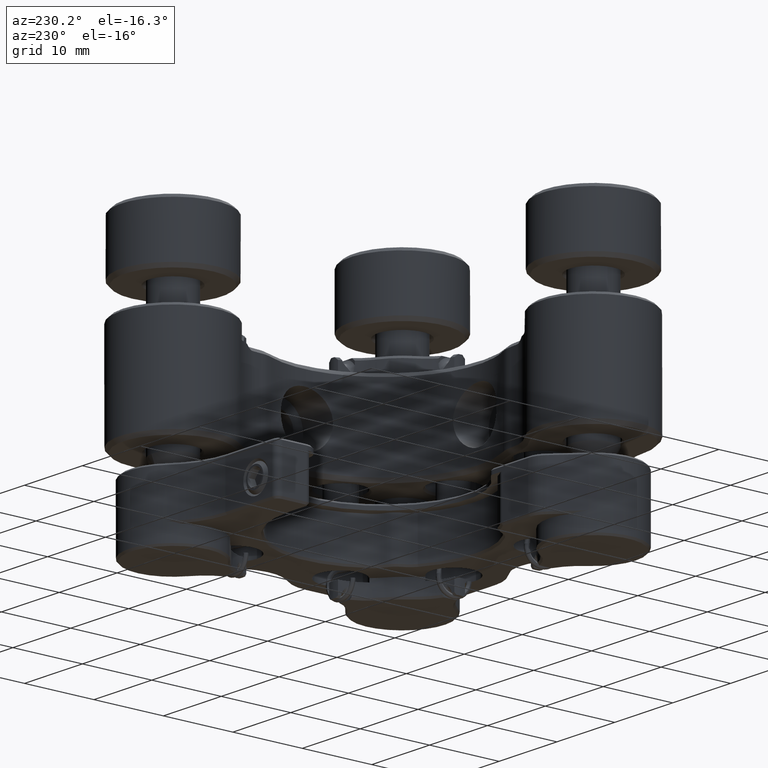
[diagram: clean part render]
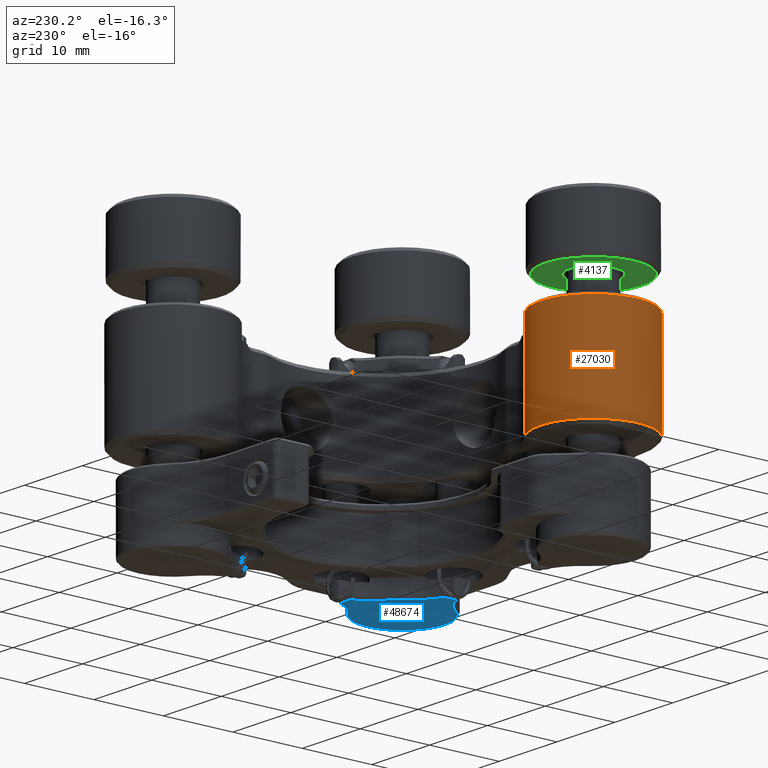
[diagram: same view with three faces highlighted in distinct colors, each labeled with its STEP entity id]
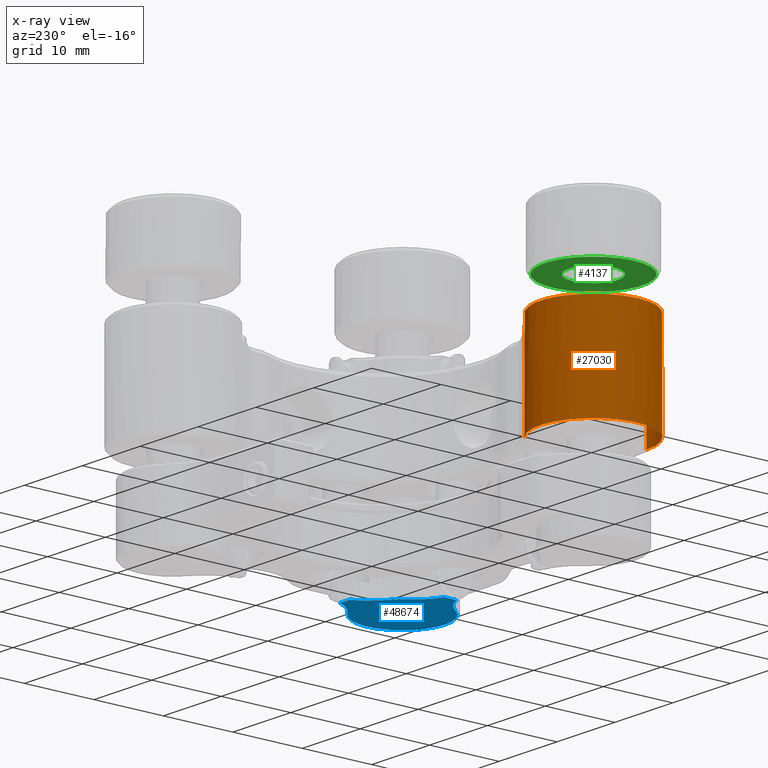
[diagram: x-ray of the same camera — body ghosted, the three highlighted faces saturated]
A machine part, auxiliary view with three faces highlighted in distinct colors.
The next image is the same camera in x-ray (body ghosted, the three faces saturated) — at least one of them is partly hidden behind the body in this view.
Their STEP definitions:

[orange] entity #27030 — the highlighted cylindrical surface (partial cylindrical patch) has radius 7.62 mm, axis along (0, 0, -1).
#89 = EDGE_CURVE ( 'NONE', #37250, #40178, #51679, .T. ) ;
#282 = CARTESIAN_POINT ( 'NONE',  ( -36.85884826638655198, 4.494097397248493664, 38.20170909685329264 ) ) ;
#806 = DIRECTION ( 'NONE',  ( 9.106159978880849785E-15, -1.000000000000000000, 0.000000000000000000 ) ) ;
#2035 = EDGE_CURVE ( 'NONE', #29170, #27580, #41493, .T. ) ;
#2494 = CARTESIAN_POINT ( 'NONE',  ( -36.85884826638653777, 12.11409739724853196, 38.20170909685329264 ) ) ;
#4441 = DIRECTION ( 'NONE',  ( -2.776129051972644027E-17, -2.760323471275298556E-17, 1.000000000000000000 ) ) ;
#5784 = ORIENTED_EDGE ( 'NONE', *, *, #14887, .T. ) ;
#6588 = EDGE_CURVE ( 'NONE', #29170, #17406, #55480, .T. ) ;
#6696 = DIRECTION ( 'NONE',  ( 9.106159978880849785E-15, -1.000000000000000000, 0.000000000000000000 ) ) ;
#7683 = DIRECTION ( 'NONE',  ( -2.776129051972644027E-17, -2.760323471275298556E-17, 1.000000000000000000 ) ) ;
#8831 = CARTESIAN_POINT ( 'NONE',  ( -36.85884826638660883, 4.494097397244424918, 26.00970909684258459 ) ) ;
#9270 = CARTESIAN_POINT ( 'NONE',  ( -36.85884826638653777, 12.11409739724853196, 40.36070909685332708 ) ) ;
#9884 = ORIENTED_EDGE ( 'NONE', *, *, #89, .T. ) ;
#10918 = EDGE_CURVE ( 'NONE', #40178, #48022, #23269, .T. ) ;
#13149 = ORIENTED_EDGE ( 'NONE', *, *, #6588, .T. ) ;
#14887 = EDGE_CURVE ( 'NONE', #48022, #36699, #24118, .T. ) ;
#15334 = DIRECTION ( 'NONE',  ( 2.776129051972644027E-17, 2.760323471275298556E-17, -1.000000000000000000 ) ) ;
#16835 = CARTESIAN_POINT ( 'NONE',  ( -36.85884826638653777, 12.11409739724853374, 26.00970909685332799 ) ) ;
#16889 = VECTOR ( 'NONE', #4441, 1000.000000000000000 ) ;
#17406 = VERTEX_POINT ( 'NONE', #282 ) ;
#17863 = CARTESIAN_POINT ( 'NONE',  ( -30.16901287497597295, 15.76245352512717446, 38.20170909685329264 ) ) ;
#18972 = DIRECTION ( 'NONE',  ( 9.106159978880849785E-15, -1.000000000000000000, 0.000000000000000000 ) ) ;
#20170 = CARTESIAN_POINT ( 'NONE',  ( -36.85884826638653777, 12.11409739724853196, 38.20170909685329264 ) ) ;
#22718 = CARTESIAN_POINT ( 'NONE',  ( -32.05622999016586050, 18.03011444361606053, 40.74170909685329178 ) ) ;
#22955 = CARTESIAN_POINT ( 'NONE',  ( -36.85884826638653777, 12.11409739724853196, 40.74170909685329178 ) ) ;
#23269 = LINE ( 'NONE', #38108, #50819 ) ;
#24118 = CIRCLE ( 'NONE', #29278, 7.620000000000023199 ) ;
#24129 = VERTEX_POINT ( 'NONE', #33797 ) ;
#27030 = ADVANCED_FACE ( 'NONE', ( #48125 ), #32628, .T. ) ;
#27374 = AXIS2_PLACEMENT_3D ( 'NONE', #22955, #42647, #57475 ) ;
#27571 = LINE ( 'NONE', #22718, #41888 ) ;
#27580 = VERTEX_POINT ( 'NONE', #31916 ) ;
#27884 = DIRECTION ( 'NONE',  ( 2.776129051972644027E-17, 2.760323471275298556E-17, -1.000000000000000000 ) ) ;
#28170 = VECTOR ( 'NONE', #7683, 1000.000000000000000 ) ;
#28952 = CARTESIAN_POINT ( 'NONE',  ( -30.16901287497609729, 8.465741269369482680, 40.36070909685332708 ) ) ;
#28981 = EDGE_CURVE ( 'NONE', #36699, #27580, #27571, .T. ) ;
#29170 = VERTEX_POINT ( 'NONE', #8831 ) ;
#29278 = AXIS2_PLACEMENT_3D ( 'NONE', #2494, #47339, #6696 ) ;
#31118 = AXIS2_PLACEMENT_3D ( 'NONE', #9270, #63486, #18972 ) ;
#31166 = AXIS2_PLACEMENT_3D ( 'NONE', #16835, #56175, #36811 ) ;
#31402 = ORIENTED_EDGE ( 'NONE', *, *, #35685, .F. ) ;
#31916 = CARTESIAN_POINT ( 'NONE',  ( -32.05622999015996299, 18.03011444364667426, 26.00970909692768984 ) ) ;
#32319 = ORIENTED_EDGE ( 'NONE', *, *, #2035, .F. ) ;
#32628 = CYLINDRICAL_SURFACE ( 'NONE', #27374, 7.620000000000023199 ) ;
#33797 = CARTESIAN_POINT ( 'NONE',  ( -30.16901287497605466, 8.465741269369553734, 38.20170909685329264 ) ) ;
#35685 = EDGE_CURVE ( 'NONE', #24129, #17406, #48111, .T. ) ;
#36409 = CARTESIAN_POINT ( 'NONE',  ( -30.16901287497598005, 15.76245352512709808, 40.36070909685336972 ) ) ;
#36699 = VERTEX_POINT ( 'NONE', #45461 ) ;
#36811 = DIRECTION ( 'NONE',  ( -7.284927983104679828E-15, 1.000000000000000000, 0.000000000000000000 ) ) ;
#37250 = VERTEX_POINT ( 'NONE', #28952 ) ;
#38108 = CARTESIAN_POINT ( 'NONE',  ( -30.16901287497586281, 15.76245352512716735, 40.74170909685329178 ) ) ;
#38328 = CARTESIAN_POINT ( 'NONE',  ( -30.16901287497609729, 8.465741269369480904, 40.74170909685329178 ) ) ;
#39615 = LINE ( 'NONE', #38328, #16889 ) ;
#40136 = ORIENTED_EDGE ( 'NONE', *, *, #41172, .T. ) ;
#40178 = VERTEX_POINT ( 'NONE', #36409 ) ;
#41172 = EDGE_CURVE ( 'NONE', #24129, #37250, #39615, .T. ) ;
#41493 = CIRCLE ( 'NONE', #31166, 7.620000000000022311 ) ;
#41888 = VECTOR ( 'NONE', #27884, 1000.000000000000000 ) ;
#42647 = DIRECTION ( 'NONE',  ( 2.776129051972644027E-17, 2.760323471275298556E-17, -1.000000000000000000 ) ) ;
#45461 = CARTESIAN_POINT ( 'NONE',  ( -32.05622999016586050, 18.03011444361606408, 38.20170909685329264 ) ) ;
#47339 = DIRECTION ( 'NONE',  ( -2.776129051972644027E-17, -2.760323471275298556E-17, 1.000000000000000000 ) ) ;
#47810 = ORIENTED_EDGE ( 'NONE', *, *, #28981, .T. ) ;
#48022 = VERTEX_POINT ( 'NONE', #17863 ) ;
#48111 = CIRCLE ( 'NONE', #57347, 7.620000000000023199 ) ;
#48125 = FACE_OUTER_BOUND ( 'NONE', #56755, .T. ) ;
#50569 = ORIENTED_EDGE ( 'NONE', *, *, #10918, .T. ) ;
#50819 = VECTOR ( 'NONE', #52938, 1000.000000000000000 ) ;
#51679 = CIRCLE ( 'NONE', #31118, 7.620000000000023199 ) ;
#52938 = DIRECTION ( 'NONE',  ( 2.776129051972644027E-17, 2.760323471275298556E-17, -1.000000000000000000 ) ) ;
#55480 = LINE ( 'NONE', #57053, #28170 ) ;
#56175 = DIRECTION ( 'NONE',  ( 2.776129051972644027E-17, 2.760323471275298556E-17, -1.000000000000000000 ) ) ;
#56755 = EDGE_LOOP ( 'NONE', ( #47810, #32319, #13149, #31402, #40136, #9884, #50569, #5784 ) ) ;
#57053 = CARTESIAN_POINT ( 'NONE',  ( -36.85884826638646672, 4.494097397248508763, 40.74170909685329178 ) ) ;
#57347 = AXIS2_PLACEMENT_3D ( 'NONE', #20170, #15334, #806 ) ;
#57475 = DIRECTION ( 'NONE',  ( 9.106159978880849785E-15, -1.000000000000000000, 0.000000000000000000 ) ) ;
#63486 = DIRECTION ( 'NONE',  ( 2.776129051972644027E-17, 2.760323471275298556E-17, -1.000000000000000000 ) ) ;

[blue] entity #48674 — the highlighted planar face has unit normal (0, 0, -1).
#959 = DIRECTION ( 'NONE',  ( -1.000000000000000000, 0.000000000000000000, 0.000000000000000000 ) ) ;
#1547 = CIRCLE ( 'NONE', #20121, 6.731000000077685286 ) ;
#2827 = VERTEX_POINT ( 'NONE', #23259 ) ;
#3867 = VERTEX_POINT ( 'NONE', #40973 ) ;
#4429 = LINE ( 'NONE', #48957, #39336 ) ;
#4741 = ORIENTED_EDGE ( 'NONE', *, *, #43152, .T. ) ;
#4952 = CARTESIAN_POINT ( 'NONE',  ( -12.13194826638675927, 11.23169766899369648, 12.97670909678171292 ) ) ;
#6449 = VERTEX_POINT ( 'NONE', #10639 ) ;
#6480 = EDGE_CURVE ( 'NONE', #17267, #50820, #22002, .T. ) ;
#6512 = AXIS2_PLACEMENT_3D ( 'NONE', #25485, #45168, #959 ) ;
#7383 = EDGE_CURVE ( 'NONE', #6449, #3867, #34246, .T. ) ;
#8978 = AXIS2_PLACEMENT_3D ( 'NONE', #43996, #37872, #52691 ) ;
#9954 = DIRECTION ( 'NONE',  ( 0.000000000000000000, 1.000000000000000000, 2.577215088354560194E-16 ) ) ;
#10148 = EDGE_CURVE ( 'NONE', #2827, #26796, #30404, .T. ) ;
#10639 = CARTESIAN_POINT ( 'NONE',  ( -8.883905116420768522, 8.692311697087799160, 12.97670909673337825 ) ) ;
#11873 = CARTESIAN_POINT ( 'NONE',  ( 3.361159144591275183, 22.72973785281525849, 12.97670909684711305 ) ) ;
#13945 = DIRECTION ( 'NONE',  ( -1.000000000000000000, 0.000000000000000000, 0.000000000000000000 ) ) ;
#15238 = DIRECTION ( 'NONE',  ( -0.000000000000000000, 0.000000000000000000, 1.000000000000000000 ) ) ;
#15435 = CARTESIAN_POINT ( 'NONE',  ( -7.260633966625839264, 17.15915424743416651, 12.97670909684072171 ) ) ;
#17267 = VERTEX_POINT ( 'NONE', #15435 ) ;
#17676 = ORIENTED_EDGE ( 'NONE', *, *, #6480, .T. ) ;
#17796 = VECTOR ( 'NONE', #56184, 1000.000000000000000 ) ;
#18062 = ORIENTED_EDGE ( 'NONE', *, *, #7383, .F. ) ;
#18120 = CARTESIAN_POINT ( 'NONE',  ( -2.956448538016727134, 20.40719739724868020, 12.97670909682966212 ) ) ;
#19896 = ORIENTED_EDGE ( 'NONE', *, *, #56367, .T. ) ;
#20071 = VECTOR ( 'NONE', #22616, 1000.000000000000000 ) ;
#20121 = AXIS2_PLACEMENT_3D ( 'NONE', #63316, #15238, #13945 ) ;
#20337 = DIRECTION ( 'NONE',  ( 1.000000000000000000, -4.553079989405348192E-15, 0.000000000000000000 ) ) ;
#21038 = AXIS2_PLACEMENT_3D ( 'NONE', #34208, #44858, #20337 ) ;
#21590 = EDGE_CURVE ( 'NONE', #57050, #22166, #4429, .T. ) ;
#22002 = CIRCLE ( 'NONE', #6512, 6.730999999998734218 ) ;
#22166 = VERTEX_POINT ( 'NONE', #27449 ) ;
#22307 = AXIS2_PLACEMENT_3D ( 'NONE', #11873, #22520, #27682 ) ;
#22520 = DIRECTION ( 'NONE',  ( -9.298852656277406742E-31, -2.577215088351517656E-16, 1.000000000000000000 ) ) ;
#22616 = DIRECTION ( 'NONE',  ( 0.000000000000000000, 1.000000000000000000, 2.775557561562890118E-17 ) ) ;
#23079 = EDGE_CURVE ( 'NONE', #6449, #60325, #1547, .T. ) ;
#23259 = CARTESIAN_POINT ( 'NONE',  ( -3.838848266386856167, 20.40719739724870152, 12.97670909685329477 ) ) ;
#23548 = CIRCLE ( 'NONE', #44144, 6.731000000020769036 ) ;
#23933 = AXIS2_PLACEMENT_3D ( 'NONE', #43193, #58975, #62863 ) ;
#24117 = DIRECTION ( 'NONE',  ( 0.000000000000000000, 1.000000000000000000, 2.775557561562890118E-17 ) ) ;
#25117 = DIRECTION ( 'NONE',  ( -8.634648895280963112E-31, -2.577215088376324867E-16, 1.000000000000000000 ) ) ;
#25485 = CARTESIAN_POINT ( 'NONE',  ( -11.03885567736440443, 22.72973785281530823, 12.97670909682020657 ) ) ;
#26796 = VERTEX_POINT ( 'NONE', #18120 ) ;
#27449 = CARTESIAN_POINT ( 'NONE',  ( -12.13194826638677704, 12.99649712553048708, 12.97670909685282403 ) ) ;
#27682 = DIRECTION ( 'NONE',  ( 0.000000000000000000, 1.000000000000000000, 2.577215088395046015E-16 ) ) ;
#30404 = LINE ( 'NONE', #60734, #17796 ) ;
#31501 = ORIENTED_EDGE ( 'NONE', *, *, #21590, .T. ) ;
#32670 = CARTESIAN_POINT ( 'NONE',  ( -41.57692519923892149, 20.40719739724872284, 12.97670909685329654 ) ) ;
#34208 = CARTESIAN_POINT ( 'NONE',  ( -3.838848266386558183, 12.11409739724936507, 12.97670909684711660 ) ) ;
#34246 = CIRCLE ( 'NONE', #23933, 6.096000000046029932 ) ;
#35506 = ORIENTED_EDGE ( 'NONE', *, *, #36854, .T. ) ;
#36326 = CARTESIAN_POINT ( 'NONE',  ( -8.883905116567198945, 15.53588309748554508, 12.97670909684711660 ) ) ;
#36854 = EDGE_CURVE ( 'NONE', #26796, #3867, #50126, .T. ) ;
#36892 = ORIENTED_EDGE ( 'NONE', *, *, #23079, .T. ) ;
#37817 = VERTEX_POINT ( 'NONE', #36326 ) ;
#37872 = DIRECTION ( 'NONE',  ( 6.132303471447327340E-21, 2.775557561562890118E-17, -1.000000000000000000 ) ) ;
#39336 = VECTOR ( 'NONE', #24117, 1000.000000000000000 ) ;
#39958 = VECTOR ( 'NONE', #52662, 1000.000000000000000 ) ;
#40973 = CARTESIAN_POINT ( 'NONE',  ( -0.4170625661078284363, 17.15915424739284134, 12.97670909681869489 ) ) ;
#41094 = ORIENTED_EDGE ( 'NONE', *, *, #10148, .T. ) ;
#42587 = ORIENTED_EDGE ( 'NONE', *, *, #44166, .T. ) ;
#43152 = EDGE_CURVE ( 'NONE', #37817, #17267, #51912, .T. ) ;
#43193 = CARTESIAN_POINT ( 'NONE',  ( -3.838848266386551522, 12.11409739724841117, 12.97670909684711660 ) ) ;
#43996 = CARTESIAN_POINT ( 'NONE',  ( -41.57692519923892149, 24.04186663779331923, 12.97670909685329654 ) ) ;
#44144 = AXIS2_PLACEMENT_3D ( 'NONE', #53829, #25117, #9954 ) ;
#44166 = EDGE_CURVE ( 'NONE', #60325, #57050, #56804, .T. ) ;
#44858 = DIRECTION ( 'NONE',  ( 0.000000000000000000, -0.000000000000000000, -1.000000000000000000 ) ) ;
#45168 = DIRECTION ( 'NONE',  ( 1.288607544175767703E-16, -4.317324447557428348E-31, 1.000000000000000000 ) ) ;
#45529 = EDGE_LOOP ( 'NONE', ( #18062, #36892, #42587, #31501, #58447, #4741, #17676, #19896, #41094, #35506 ) ) ;
#48674 = ADVANCED_FACE ( 'NONE', ( #53020 ), #58186, .T. ) ;
#48957 = CARTESIAN_POINT ( 'NONE',  ( -12.13194826638676993, 24.04186663779331923, 12.97670909685329654 ) ) ;
#50126 = CIRCLE ( 'NONE', #22307, 6.730999999915030507 ) ;
#50159 = CARTESIAN_POINT ( 'NONE',  ( -12.13194826638676993, 12.11409739724891388, 12.97670909685328766 ) ) ;
#50820 = VERTEX_POINT ( 'NONE', #60426 ) ;
#51912 = CIRCLE ( 'NONE', #21038, 6.096000000046982059 ) ;
#52596 = CARTESIAN_POINT ( 'NONE',  ( -12.13194826638675572, 24.04186663779331923, 12.97670909685329654 ) ) ;
#52662 = DIRECTION ( 'NONE',  ( 1.000000000000000000, -1.702056126997398924E-37, 6.132303471447327340E-21 ) ) ;
#52691 = DIRECTION ( 'NONE',  ( 0.000000000000000000, 1.000000000000000000, 2.775557561562890118E-17 ) ) ;
#53020 = FACE_OUTER_BOUND ( 'NONE', #45529, .T. ) ;
#53144 = EDGE_CURVE ( 'NONE', #22166, #37817, #23548, .T. ) ;
#53829 = CARTESIAN_POINT ( 'NONE',  ( -14.45448872195322032, 19.31410480822652076, 12.97670909684711660 ) ) ;
#56184 = DIRECTION ( 'NONE',  ( 1.000000000000000000, -2.715799662180329082E-14, 0.000000000000000000 ) ) ;
#56367 = EDGE_CURVE ( 'NONE', #50820, #2827, #58162, .T. ) ;
#56804 = LINE ( 'NONE', #52596, #20071 ) ;
#57050 = VERTEX_POINT ( 'NONE', #50159 ) ;
#58162 = LINE ( 'NONE', #32670, #39958 ) ;
#58186 = PLANE ( 'NONE',  #8978 ) ;
#58447 = ORIENTED_EDGE ( 'NONE', *, *, #53144, .T. ) ;
#58975 = DIRECTION ( 'NONE',  ( 1.365923996825674290E-16, -4.477796076250138974E-31, 1.000000000000000000 ) ) ;
#60325 = VERTEX_POINT ( 'NONE', #4952 ) ;
#60426 = CARTESIAN_POINT ( 'NONE',  ( -4.721247994692124195, 20.40719739724872994, 12.97670909682613072 ) ) ;
#60734 = CARTESIAN_POINT ( 'NONE',  ( -0.9559482663868570373, 20.40719739724862336, 12.97670909685329654 ) ) ;
#62863 = DIRECTION ( 'NONE',  ( 1.000000000000000000, 0.000000000000000000, 0.000000000000000000 ) ) ;
#63316 = CARTESIAN_POINT ( 'NONE',  ( -14.45448872195326651, 4.914089986270842481, 12.97670909674427975 ) ) ;

[green] entity #4137 — the highlighted planar face has unit normal (-0, 0, -1).
#1986 = DIRECTION ( 'NONE',  ( 0.9807418442196327302, 0.1953085635518162222, 0.000000000000000000 ) ) ;
#2300 = EDGE_CURVE ( 'NONE', #41081, #41081, #12575, .T. ) ;
#2867 = DIRECTION ( 'NONE',  ( -0.9807418442196327302, -0.1953085635518159446, 0.000000000000000000 ) ) ;
#3857 = EDGE_CURVE ( 'NONE', #36223, #36223, #15751, .T. ) ;
#4137 = ADVANCED_FACE ( 'NONE', ( #13486, #14139 ), #8648, .T. ) ;
#6224 = CARTESIAN_POINT ( 'NONE',  ( -40.29144472107405761, 11.43051742483334543, 44.81038921443210654 ) ) ;
#8648 = PLANE ( 'NONE',  #63137 ) ;
#12575 = CIRCLE ( 'NONE', #46635, 7.000000000000001776 ) ;
#12632 = CARTESIAN_POINT ( 'NONE',  ( -29.99365535684907869, 13.48125734211125071, 44.81038921440163847 ) ) ;
#13486 = FACE_OUTER_BOUND ( 'NONE', #17966, .T. ) ;
#14139 = FACE_BOUND ( 'NONE', #56638, .T. ) ;
#15751 = CIRCLE ( 'NONE', #47695, 3.499999999917239091 ) ;
#17966 = EDGE_LOOP ( 'NONE', ( #47511 ) ) ;
#19306 = DIRECTION ( 'NONE',  ( -0.9807418442196326192, -0.1953085635518161667, -5.429935508734607190E-18 ) ) ;
#22224 = DIRECTION ( 'NONE',  ( 2.390930686497921843E-17, -1.478624013833668581E-16, 1.000000000000000000 ) ) ;
#27382 = CARTESIAN_POINT ( 'NONE',  ( -36.85884826638650935, 12.11409739724853729, 44.81038921443210654 ) ) ;
#31667 = CARTESIAN_POINT ( 'NONE',  ( -36.85884826638650935, 12.11409739724853729, 44.81038921440163847 ) ) ;
#36223 = VERTEX_POINT ( 'NONE', #6224 ) ;
#41081 = VERTEX_POINT ( 'NONE', #12632 ) ;
#46635 = AXIS2_PLACEMENT_3D ( 'NONE', #31667, #46825, #1986 ) ;
#46825 = DIRECTION ( 'NONE',  ( 2.390930686497921843E-17, -1.478624013833668581E-16, 1.000000000000000000 ) ) ;
#47511 = ORIENTED_EDGE ( 'NONE', *, *, #2300, .F. ) ;
#47695 = AXIS2_PLACEMENT_3D ( 'NONE', #27382, #22224, #2867 ) ;
#48344 = CARTESIAN_POINT ( 'NONE',  ( -36.85884826638650935, 12.11409739724853729, 44.81038921440163847 ) ) ;
#56638 = EDGE_LOOP ( 'NONE', ( #57510 ) ) ;
#57375 = DIRECTION ( 'NONE',  ( -2.390930686497922460E-17, 1.478624013833668581E-16, -1.000000000000000000 ) ) ;
#57510 = ORIENTED_EDGE ( 'NONE', *, *, #3857, .T. ) ;
#63137 = AXIS2_PLACEMENT_3D ( 'NONE', #48344, #57375, #19306 ) ;